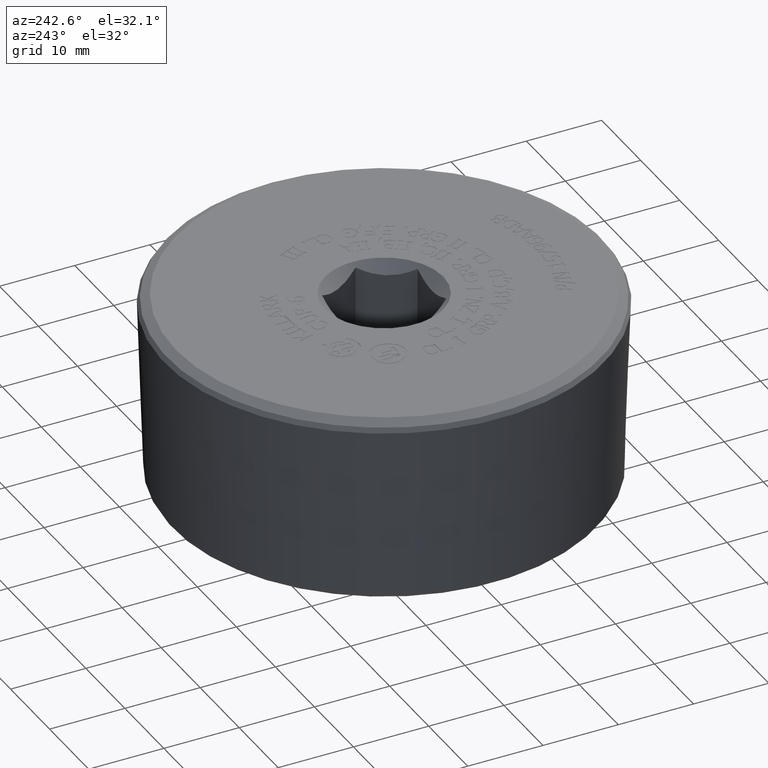
[diagram: clean part render]
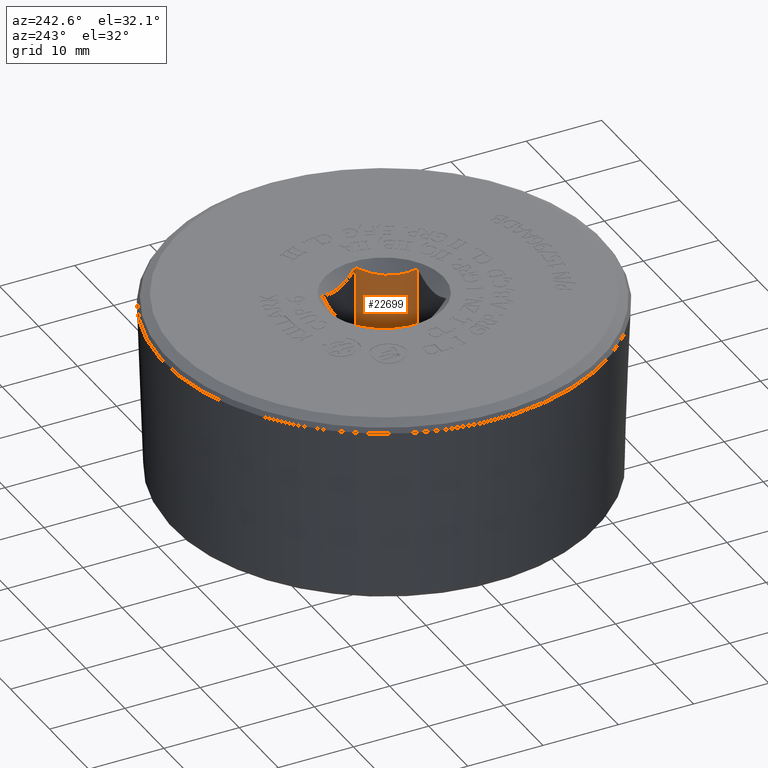
[diagram: same view with one face highlighted and labeled with its STEP entity id]
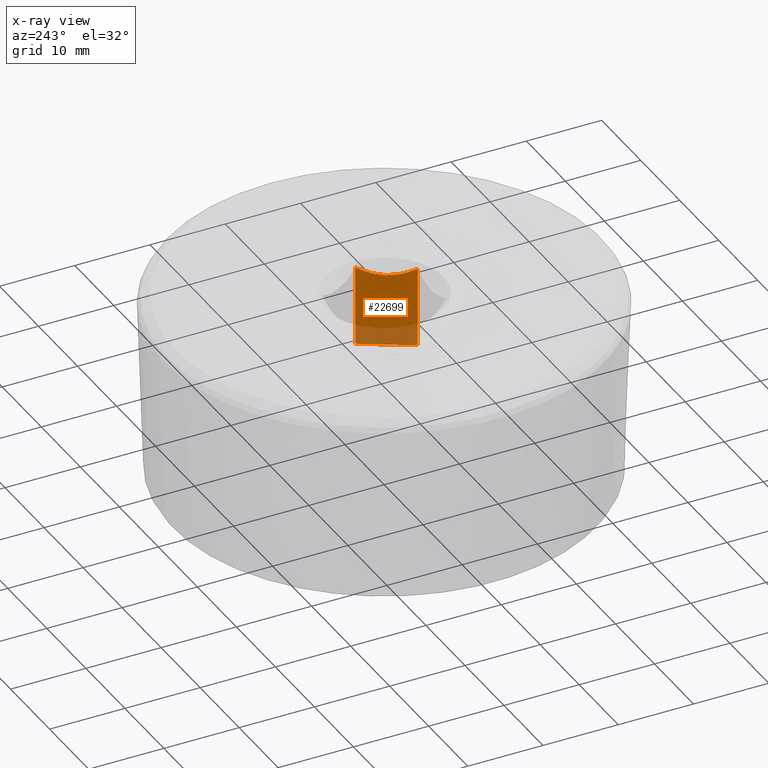
[diagram: x-ray of the same camera — body ghosted, the highlighted face saturated]
A machine part, auxiliary view. The second image highlights one B-rep face of the part: STEP entity #22699.
The next image is the same camera in x-ray: the body ghosted, the highlighted face saturated — about 25% of this face is hidden behind the body in this view.
In plain terms, the highlighted planar face has unit normal (0.866, -0.5, 0).
Its self-contained STEP definition (entity closure, byte-faithful):
#18=(
BOUNDED_CURVE()
B_SPLINE_CURVE(2,(#39273,#39274,#39275),.UNSPECIFIED.,.F.,.F.)
B_SPLINE_CURVE_WITH_KNOTS((3,3),(0.0888682296322629,0.890926687681742),
 .UNSPECIFIED.)
CURVE()
GEOMETRIC_REPRESENTATION_ITEM()
RATIONAL_B_SPLINE_CURVE((1.03958761790857,1.20041238209085,1.03958761790972))
REPRESENTATION_ITEM('')
);
#2066=PLANE('',#23597);
#3271=FACE_OUTER_BOUND('',#4598,.T.);
#4598=EDGE_LOOP('',(#21418,#21419,#21420,#21421,#21422));
#7038=LINE('',#39290,#9484);
#7039=LINE('',#39292,#9485);
#7040=LINE('',#39294,#9486);
#7041=LINE('',#39295,#9487);
#9484=VECTOR('',#27776,0.393700787401575);
#9485=VECTOR('',#27777,0.393700787401575);
#9486=VECTOR('',#27778,0.393700787401575);
#9487=VECTOR('',#27779,0.393700787401575);
#11705=VERTEX_POINT('',#39268);
#11706=VERTEX_POINT('',#39272);
#11709=VERTEX_POINT('',#39289);
#11710=VERTEX_POINT('',#39291);
#11711=VERTEX_POINT('',#39293);
#14944=EDGE_CURVE('',#11706,#11705,#18,.T.);
#14949=EDGE_CURVE('',#11705,#11709,#7038,.T.);
#14950=EDGE_CURVE('',#11710,#11709,#7039,.T.);
#14951=EDGE_CURVE('',#11711,#11710,#7040,.T.);
#14952=EDGE_CURVE('',#11706,#11711,#7041,.T.);
#21418=ORIENTED_EDGE('',*,*,#14944,.T.);
#21419=ORIENTED_EDGE('',*,*,#14949,.T.);
#21420=ORIENTED_EDGE('',*,*,#14950,.F.);
#21421=ORIENTED_EDGE('',*,*,#14951,.F.);
#21422=ORIENTED_EDGE('',*,*,#14952,.F.);
#22699=ADVANCED_FACE('',(#3271),#2066,.F.);
#23597=AXIS2_PLACEMENT_3D('',#39288,#27774,#27775);
#27774=DIRECTION('center_axis',(0.866025403784439,-0.5,0.));
#27775=DIRECTION('ref_axis',(0.,0.,-1.));
#27776=DIRECTION('',(0.,0.,-1.));
#27777=DIRECTION('',(0.5,0.866025403784439,0.));
#27778=DIRECTION('',(0.5,0.866025403784439,0.));
#27779=DIRECTION('',(0.,0.,-1.));
#39268=CARTESIAN_POINT('',(0.288675134594813,6.30580822661731E-19,0.978675134594813));
#39272=CARTESIAN_POINT('',(0.144337567297406,-0.25,0.978675134594813));
#39273=CARTESIAN_POINT('Ctrl Pts',(0.144337567297406,-0.25,0.978675134594813));
#39274=CARTESIAN_POINT('Ctrl Pts',(0.216506350946483,-0.124999999999353,
0.906506350946932));
#39275=CARTESIAN_POINT('Ctrl Pts',(0.288675134594813,6.30580822661731E-19,
0.978675134594813));
#39288=CARTESIAN_POINT('Origin',(0.144337567297406,-0.25,1.));
#39289=CARTESIAN_POINT('',(0.288675134594813,6.30580822661731E-19,0.56));
#39290=CARTESIAN_POINT('',(0.288675134594813,6.30580822661731E-19,1.));
#39291=CARTESIAN_POINT('',(0.21650635094611,-0.125,0.56));
#39292=CARTESIAN_POINT('',(0.288675134594813,6.30580822661731E-19,0.56));
#39293=CARTESIAN_POINT('',(0.144337567297406,-0.25,0.56));
#39294=CARTESIAN_POINT('',(0.288675134594813,6.30580822661731E-19,0.56));
#39295=CARTESIAN_POINT('',(0.144337567297406,-0.25,1.));